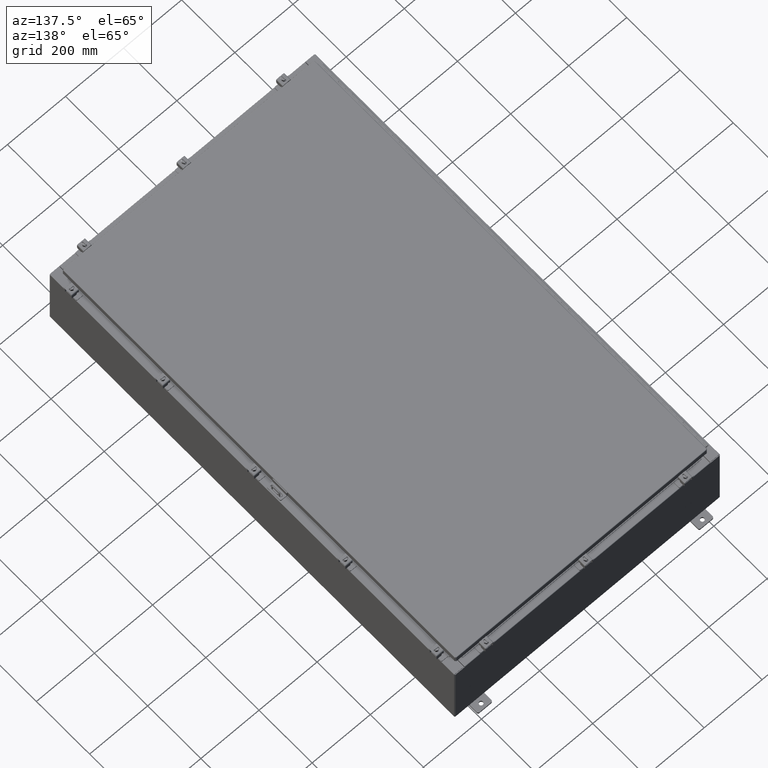
[diagram: clean part render]
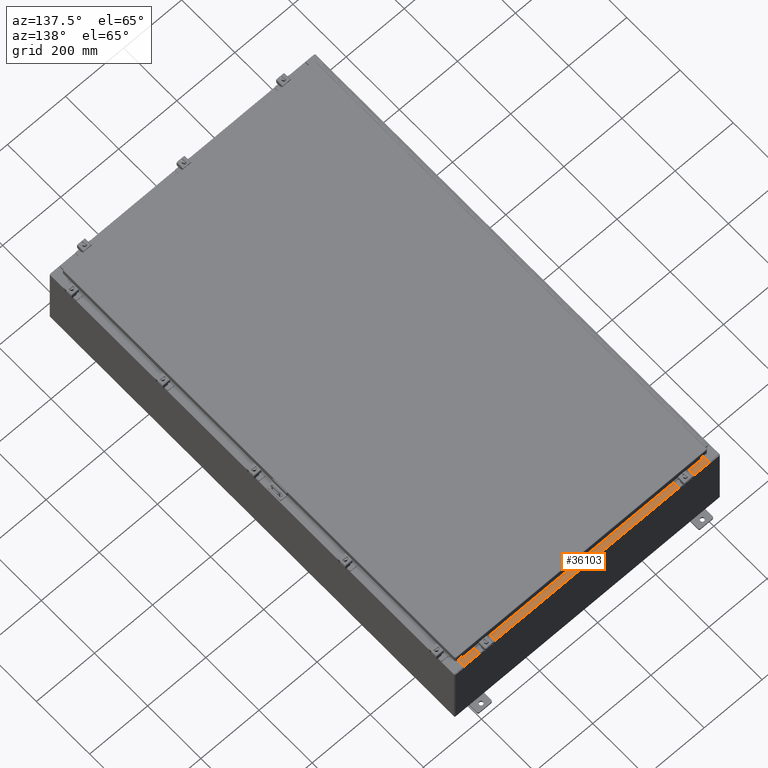
[diagram: same view with one face highlighted and labeled with its STEP entity id]
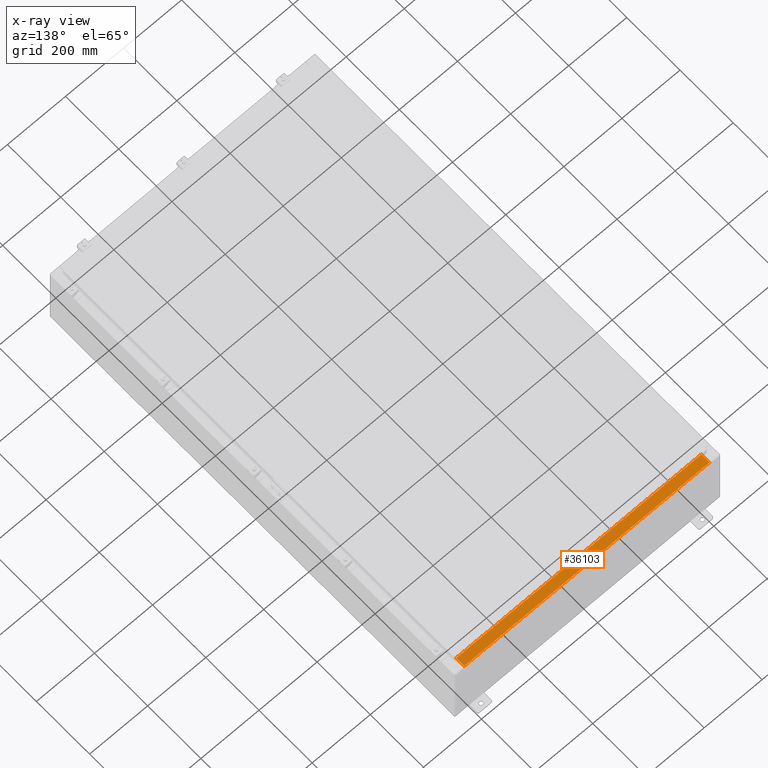
[diagram: x-ray of the same camera — body ghosted, the highlighted face saturated]
A machine part, auxiliary view. The second image highlights one B-rep face of the part: STEP entity #36103.
The next image is the same camera in x-ray: the body ghosted, the highlighted face saturated — about 0% of this face is hidden behind the body in this view.
In plain terms, the highlighted planar face has unit normal (0, 0, 1).
Its self-contained STEP definition (entity closure, byte-faithful):
#1189 = ORIENTED_EDGE ( 'NONE', *, *, #57159, .F. ) ;
#2522 = DIRECTION ( 'NONE',  ( -0.0000000000000000000, -1.000000000000000000, 3.566381192773190000E-015 ) ) ;
#4834 = VECTOR ( 'NONE', #58754, 39.37007874015748100 ) ;
#6658 = VECTOR ( 'NONE', #2522, 39.37007874015748100 ) ;
#8062 = ORIENTED_EDGE ( 'NONE', *, *, #56054, .F. ) ;
#8204 = DIRECTION ( 'NONE',  ( 0.0000000000000000000, 3.566381192773190000E-015, 1.000000000000000000 ) ) ;
#12071 = CARTESIAN_POINT ( 'NONE',  ( 16.63720000000000000, -1.287299999999999900, 5.000000000000004400 ) ) ;
#13294 = AXIS2_PLACEMENT_3D ( 'NONE', #17984, #8204, #42910 ) ;
#16886 = ORIENTED_EDGE ( 'NONE', *, *, #40186, .F. ) ;
#17984 = CARTESIAN_POINT ( 'NONE',  ( 0.0000000000000000000, 1.782631094477737600E-014, 5.000000000000000000 ) ) ;
#17997 = CARTESIAN_POINT ( 'NONE',  ( 16.63720000000000400, -0.08770000000000047200, 5.000000000000000000 ) ) ;
#20802 = VECTOR ( 'NONE', #51584, 39.37007874015748100 ) ;
#21128 = VERTEX_POINT ( 'NONE', #17997 ) ;
#21365 = LINE ( 'NONE', #27261, #6658 ) ;
#24306 = EDGE_LOOP ( 'NONE', ( #1189, #8062, #16886, #24363 ) ) ;
#24363 = ORIENTED_EDGE ( 'NONE', *, *, #42563, .T. ) ;
#27261 = CARTESIAN_POINT ( 'NONE',  ( 16.63720000000000000, -1.300299999999999800, 5.000000000000004400 ) ) ;
#27697 = PLANE ( 'NONE',  #13294 ) ;
#28831 = FACE_OUTER_BOUND ( 'NONE', #24306, .T. ) ;
#31064 = VERTEX_POINT ( 'NONE', #55259 ) ;
#31237 = LINE ( 'NONE', #59601, #4834 ) ;
#32858 = VERTEX_POINT ( 'NONE', #48286 ) ;
#36103 = ADVANCED_FACE ( 'NONE', ( #28831 ), #27697, .T. ) ;
#38920 = VECTOR ( 'NONE', #44144, 39.37007874015748100 ) ;
#40186 = EDGE_CURVE ( 'NONE', #21128, #40793, #21365, .T. ) ;
#40793 = VERTEX_POINT ( 'NONE', #12071 ) ;
#42563 = EDGE_CURVE ( 'NONE', #21128, #31064, #47278, .T. ) ;
#42910 = DIRECTION ( 'NONE',  ( 0.0000000000000000000, -1.000000000000000000, 3.566381192773190000E-015 ) ) ;
#44144 = DIRECTION ( 'NONE',  ( -0.0000000000000000000, 1.000000000000000000, -3.566381192773190000E-015 ) ) ;
#46534 = CARTESIAN_POINT ( 'NONE',  ( 2.880088825576501100E-018, -0.08770000000000081900, 5.000000000000000000 ) ) ;
#47278 = LINE ( 'NONE', #46534, #20802 ) ;
#48286 = CARTESIAN_POINT ( 'NONE',  ( -16.63720000000000000, -1.287299999999999200, 5.000000000000004400 ) ) ;
#51584 = DIRECTION ( 'NONE',  ( -1.000000000000000000, -3.284023746380717400E-017, 1.171208052571274300E-031 ) ) ;
#52104 = LINE ( 'NONE', #64048, #38920 ) ;
#55259 = CARTESIAN_POINT ( 'NONE',  ( -16.63720000000000000, -0.08770000000000081900, 5.000000000000000000 ) ) ;
#56054 = EDGE_CURVE ( 'NONE', #40793, #32858, #31237, .T. ) ;
#57159 = EDGE_CURVE ( 'NONE', #32858, #31064, #52104, .T. ) ;
#58754 = DIRECTION ( 'NONE',  ( -1.000000000000000000, 0.0000000000000000000, 0.0000000000000000000 ) ) ;
#59601 = CARTESIAN_POINT ( 'NONE',  ( 16.63720000000000400, -1.287299999999999900, 5.000000000000002700 ) ) ;
#64048 = CARTESIAN_POINT ( 'NONE',  ( -16.63720000000000000, -0.07469999999999973900, 5.000000000000000000 ) ) ;